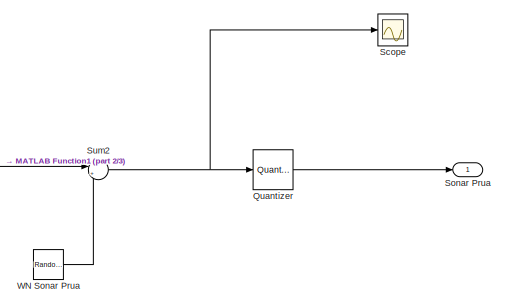
[diagram: root canvas - part 1/3, middle right region]
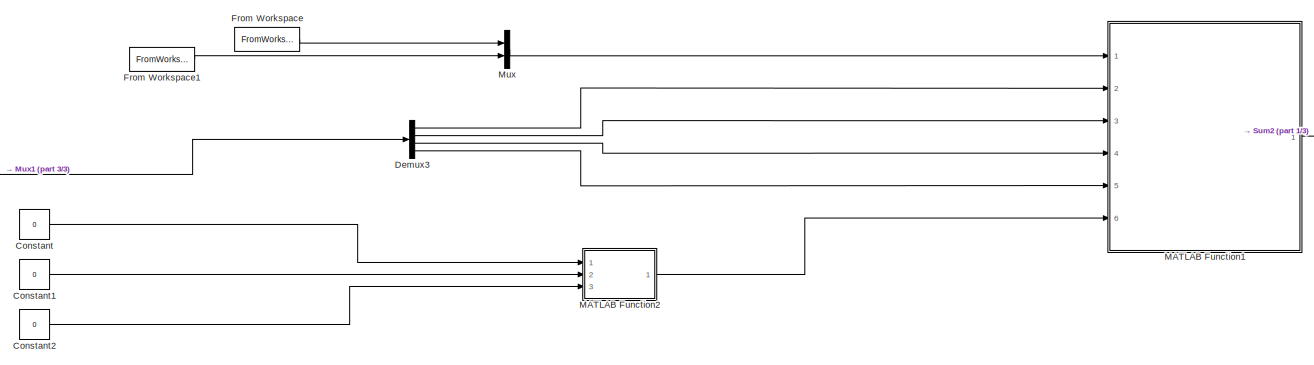
[diagram: root canvas - part 2/3, center side, full height]
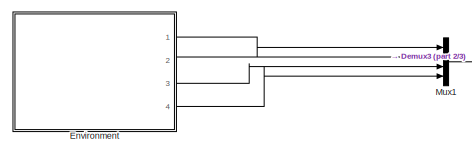
[diagram: root canvas - part 3/3, middle left region]
MODEL slx_6bd145e3bb6f
KIND model
CONFIG AbsTol = auto
CONFIG EnableMultiTasking = off
CONFIG FixedStep = auto
CONFIG MaxStep = auto
CONFIG MinStep = auto
CONFIG RelTol = 1e-3
CONFIG SampleTimeConstraint = Unconstrained
CONFIG Solver = VariableStepAuto
CONFIG SolverName = VariableStepAuto
CONFIG StartTime = 0.0
CONFIG StopTime = 90
BLOCK [RandomNumber]  WN Sonar Prua 
  SampleTime = 0.5
  Seed = 1234
  Variance = 0.05
BLOCK [Constant] Constant
  Value = 0
BLOCK [Constant] Constant1
  Value = 0
BLOCK [Constant] Constant2
  Value = 0
BLOCK [Demux] Demux3
  Ports = [1, 4]
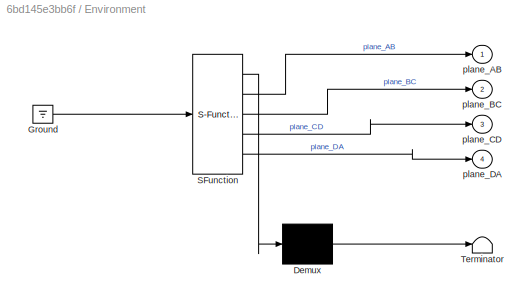
BLOCK [SubSystem] Environment
  ErrorFcn = Stateflow.Translate.translate
  PermitHierarchicalResolution = ExplicitOnly
  Ports = [0, 4]
  RequestExecContextInheritance = off
  SFBlockType = MATLAB Function
  TreatAsAtomicUnit = on
BLOCK [Demux] Environment/ Demux 
  Outputs = 1
  Ports = [1, 1]
BLOCK [Ground] Environment/ Ground 
BLOCK [S-Function] Environment/ SFunction 
  EnableBusSupport = on
  FunctionName = sf_sfun
  PortCounts = [1 5]
  Ports = [1, 5]
  SFcnIsStateOwnerBlock = off
  SFunctionDeploymentMode = off
  Tag = Stateflow S-Function 4
BLOCK [Terminator] Environment/ Terminator 
BLOCK [Outport] Environment/plane_AB
BLOCK [Outport] Environment/plane_BC
  Port = 2
BLOCK [Outport] Environment/plane_CD
  Port = 3
BLOCK [Outport] Environment/plane_DA
  Port = 4
BLOCK [FromWorkspace] From Workspace
  SampleTime = 0.1
  VariableName = xt
BLOCK [FromWorkspace] From Workspace1
  SampleTime = 0.1
  VariableName = yt
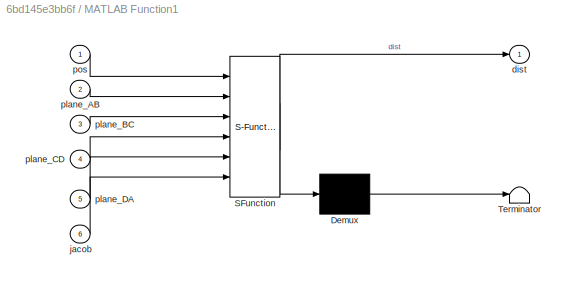
BLOCK [SubSystem] MATLAB Function1
  ErrorFcn = Stateflow.Translate.translate
  PermitHierarchicalResolution = ExplicitOnly
  Ports = [6, 1]
  RequestExecContextInheritance = off
  SFBlockType = MATLAB Function
  SystemSampleTime = 1
  TreatAsAtomicUnit = on
BLOCK [Demux] MATLAB Function1/ Demux 
  Outputs = 1
  Ports = [1, 1]
BLOCK [S-Function] MATLAB Function1/ SFunction 
  EnableBusSupport = on
  FunctionName = sf_sfun
  PortCounts = [6 2]
  Ports = [6, 2]
  SFcnIsStateOwnerBlock = off
  SFunctionDeploymentMode = off
  Tag = Stateflow S-Function 8
BLOCK [Terminator] MATLAB Function1/ Terminator 
BLOCK [Outport] MATLAB Function1/dist
BLOCK [Inport] MATLAB Function1/jacob
  Port = 6
BLOCK [Inport] MATLAB Function1/plane_AB
  Port = 2
BLOCK [Inport] MATLAB Function1/plane_BC
  Port = 3
BLOCK [Inport] MATLAB Function1/plane_CD
  Port = 4
BLOCK [Inport] MATLAB Function1/plane_DA
  Port = 5
BLOCK [Inport] MATLAB Function1/pos
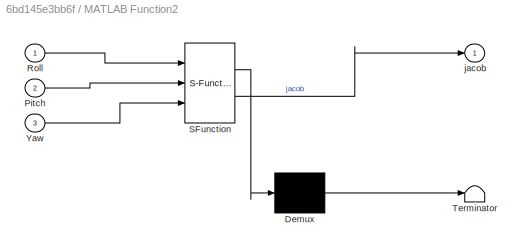
BLOCK [SubSystem] MATLAB Function2
  ErrorFcn = Stateflow.Translate.translate
  PermitHierarchicalResolution = ExplicitOnly
  Ports = [3, 1]
  RequestExecContextInheritance = off
  SFBlockType = MATLAB Function
  TreatAsAtomicUnit = on
BLOCK [Demux] MATLAB Function2/ Demux 
  Outputs = 1
  Ports = [1, 1]
BLOCK [S-Function] MATLAB Function2/ SFunction 
  EnableBusSupport = on
  FunctionName = sf_sfun
  PortCounts = [3 2]
  Ports = [3, 2]
  SFcnIsStateOwnerBlock = off
  SFunctionDeploymentMode = off
  Tag = Stateflow S-Function 12
BLOCK [Terminator] MATLAB Function2/ Terminator 
BLOCK [Inport] MATLAB Function2/Pitch
  Port = 2
BLOCK [Inport] MATLAB Function2/Roll
BLOCK [Inport] MATLAB Function2/Yaw
  Port = 3
BLOCK [Outport] MATLAB Function2/jacob
BLOCK [Mux] Mux
  DisplayOption = bar
  Inputs = 2
  Ports = [2, 1]
BLOCK [Mux] Mux1
  DisplayOption = bar
  Ports = [4, 1]
BLOCK [Quantizer] Quantizer
  LinearizeAsGain = off
  QuantizationInterval = 0.02
BLOCK [Scope] Scope
  Floating = off
  NumInputPorts = 1
  Ports = [1]
  ScopeSpecificationString = Simulink.scopes.TimeScopeBlockCfg('CurrentConfiguration', extmgr.ConfigurationSet(extmgr.Configuration('Core','General UI',true),extmgr.Configuration('Core','Source UI',true),extmgr.Configuration('Sources','WiredSimulink',true),extmgr.Configuration('Visuals','Time Domain',true),extmgr.Configuration('Tools','Plot Navigation',true),extmgr.Configuration('Tools','Measurements',true)),'Version','2020a'...<+1ch>
BLOCK [Outport] Sonar Prua
BLOCK [Sum] Sum2
  Inputs = |++
  Ports = [2, 1]
LINE  WN Sonar Prua :1 -> Sum2:2
LINE Constant1:1 -> MATLAB Function2:2
LINE Constant2:1 -> MATLAB Function2:3
LINE Constant:1 -> MATLAB Function2:1
LINE Demux3:1 -> MATLAB Function1:2
LINE Demux3:2 -> MATLAB Function1:3
LINE Demux3:3 -> MATLAB Function1:4
LINE Demux3:4 -> MATLAB Function1:5
LINE Environment:1 -> Mux1:1
LINE Environment:2 -> Mux1:2
LINE Environment:3 -> Mux1:3
LINE Environment:4 -> Mux1:4
LINE From Workspace1:1 -> Mux:2
LINE From Workspace:1 -> Mux:1
LINE MATLAB Function1:1 -> Sum2:1
LINE MATLAB Function2:1 -> MATLAB Function1:6
LINE Mux1:1 -> Demux3:1
LINE Mux:1 -> MATLAB Function1:1
LINE Quantizer:1 -> Sonar Prua:1
NET Sum2:1 -> Quantizer:1, Scope:1
note: NET lines group one-source signal fan-out (src -> all destinations, sorted); 1:1 wires keep LINE
CHART Environment states=1 transitions=1
  STATE_LABEL 'eML_blk_kernel()'
  STATE_LABEL 'SCRIPT:\nfunction [plane_AB,plane_BC,plane_CD,plane_DA] = fcn()\n%% Inizializzazione\n% Coordinate degli spigoli del bacino in lat e long fornite dal file\n% missionC.m\nA= zeros(1,3);\nB= zeros(1,3);\nC= zeros(1,3);\nD= zeros(1,3);\ncornerA = [43.781381; 11.282793]; % Lat/Lon [decimal degrees]      \ncornerB = [43.780975; 11.283505]; % Lat/Lon [decimal degrees]       \ncornerC = [43.780189; 11.282698]; % La...<+1865ch>'
CHART MATLAB Function1 states=1 transitions=1
  STATE_LABEL 'eML_blk_kernel()'
  STATE_LABEL "SCRIPT:\nfunction dist = inter(pos,plane_AB,plane_BC,plane_CD,plane_DA,jacob)\n    \n    versore_son_body = [1 0 0]';\n    versore_son_NED = jacob*versore_son_body;         %versore terna NED sonar sx\n\n    %imposto il sistema per trovare l'intersezione tra la retta con direzione\n    %nota e uno dei piani delle pareti del bacino\n\n    t_AB = -(pos(1)+plane_AB(2)*pos(2)+plane_AB(4))/(plane_AB(2)*versore_...<+587ch>"
CHART MATLAB Function2 states=1 transitions=1
  STATE_LABEL 'eML_blk_kernel()'
  STATE_LABEL "SCRIPT:\nfunction jacob  = fcn(Roll,Pitch,Yaw)\n R_x = [1        0              0;\n      0 cos(Roll)  sin(Roll);\n      0 -sin(Roll) cos(Roll)];\n  \nR_y = [cos(Pitch) 0 -sin(Pitch);\n          0           1         0;\n       sin(Pitch) 0 cos(Pitch)];\n   \nR_z = [cos(Yaw) sin(Yaw) 0;\n      -sin(Yaw) cos(Yaw) 0;\n          0                 0        1];\n      \njaco = (R_z'*R_y');\njacob = jaco*R_x';\nend\n\n"
CHART  states=0 transitions=0
CHART  states=0 transitions=0
CHART  states=0 transitions=0
